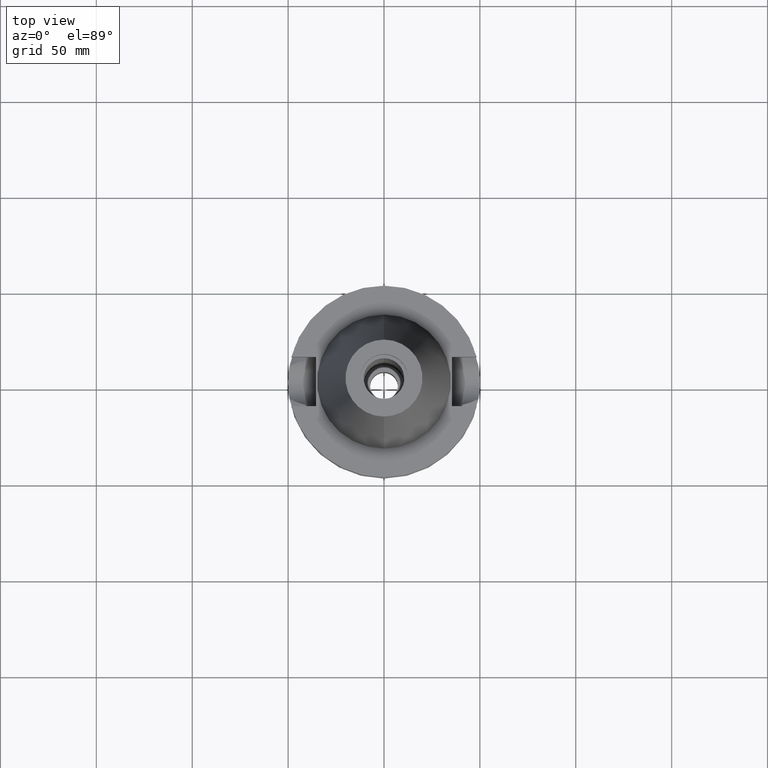
[diagram: clean part render]
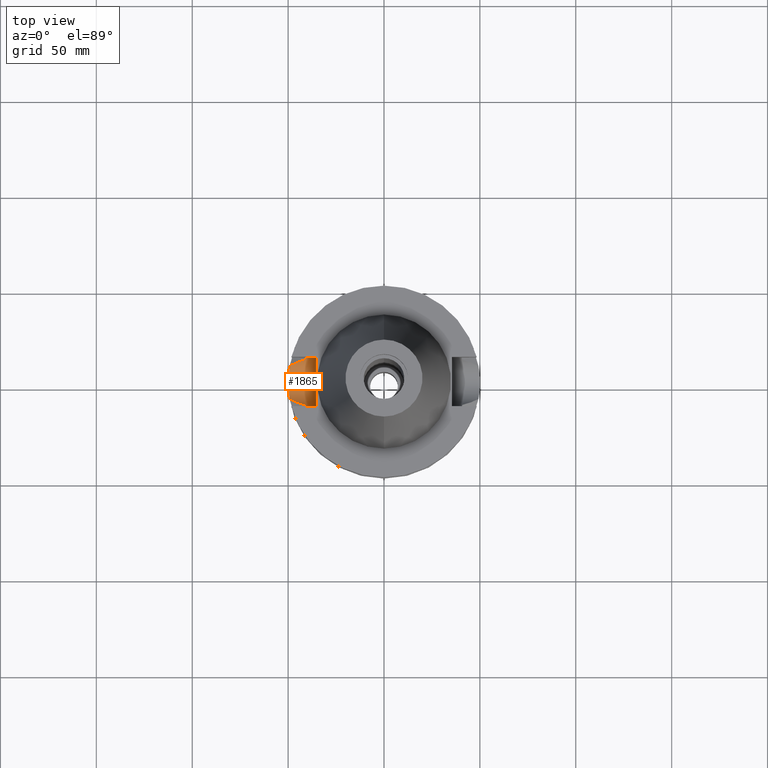
[diagram: same view with one face highlighted and labeled with its STEP entity id]
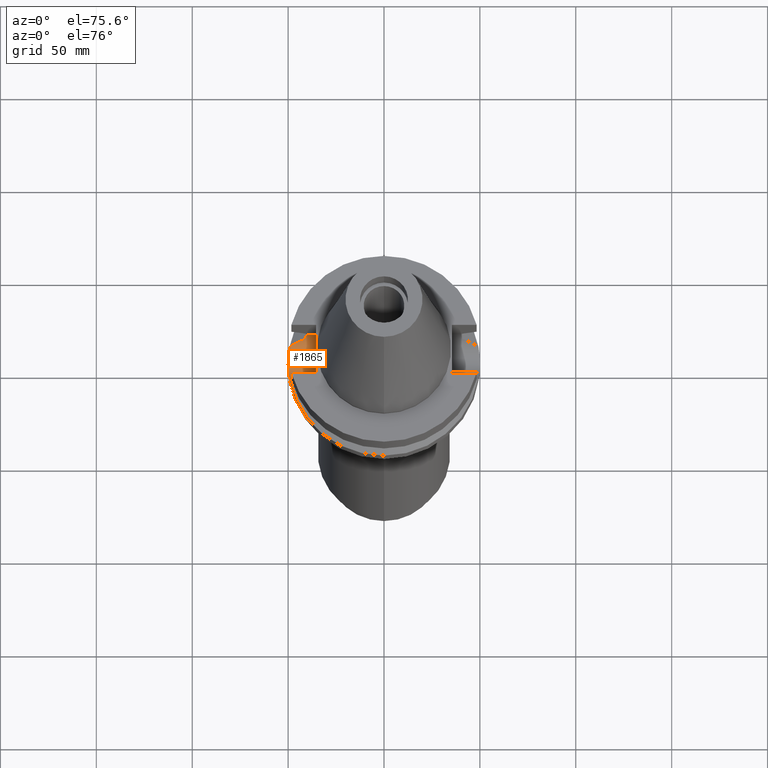
[diagram: same view with one face highlighted and labeled with its STEP entity id]
A machine part, top view. The second image highlights one B-rep face of the part: STEP entity #1865.
A second angle (auxiliary view) of the same face is appended — the face is thin or edge-on in the first view.
In plain terms, the highlighted cylindrical surface (edge-blend (fillet) strip) has radius 12.85 mm, axis along (-1, 0, 0).
Its self-contained STEP definition (entity closure, byte-faithful):
#561=CARTESIAN_POINT('',(-4.926250064874E1,-8.556052234130E0,
-3.073730776427E1));
#562=CARTESIAN_POINT('',(-4.850516715123E1,-8.990660140461E0,
-3.034944831098E1));
#563=CARTESIAN_POINT('',(-4.686825604704E1,-9.811258881920E0,
-2.951024882166E1));
#564=CARTESIAN_POINT('',(-4.409105561533E1,-1.087032054239E1,
-2.808218430025E1));
#565=CARTESIAN_POINT('',(-4.197104311257E1,-1.146516460610E1,
-2.698755488822E1));
#566=CARTESIAN_POINT('',(-4.085052569294E1,-1.172538061688E1,
-2.640718074535E1));
#613=DIRECTION('',(1.E0,3.440913946377E-14,0.E0));
#614=VECTOR('',#613,5.110831884819E0);
#615=CARTESIAN_POINT('',(-4.051083188482E1,1.285E1,-2.115E1));
#616=LINE('',#615,#614);
#620=DIRECTION('',(-1.E0,3.440913946377E-14,0.E0));
#621=VECTOR('',#620,5.110831884819E0);
#622=CARTESIAN_POINT('',(-3.54E1,-1.285E1,-2.115E1));
#623=LINE('',#622,#621);
#627=CARTESIAN_POINT('',(-4.926250064874E1,8.556052234130E0,-3.073730776427E1));
#628=CARTESIAN_POINT('',(-4.940321166032E1,7.745891647244E0,-3.146032370053E1));
#629=CARTESIAN_POINT('',(-4.966354633816E1,6.009494853035E0,-3.264838015528E1));
#630=CARTESIAN_POINT('',(-4.993505016636E1,3.097927022764E0,-3.375085846751E1));
#631=CARTESIAN_POINT('',(-5.003341773210E1,-3.317705588817E-2,
-3.412825295594E1));
#632=CARTESIAN_POINT('',(-4.993122005528E1,-3.153128237907E0,
-3.373590945716E1));
#633=CARTESIAN_POINT('',(-4.965909801349E1,-6.041818989295E0,
-3.262908500026E1));
#634=CARTESIAN_POINT('',(-4.940135028424E1,-7.756608744092E0,
-3.145075938460E1));
#635=CARTESIAN_POINT('',(-4.926250064874E1,-8.556052234130E0,
-3.073730776427E1));
#647=CARTESIAN_POINT('',(-4.085052569294E1,1.172538061688E1,-2.640718074535E1));
#648=CARTESIAN_POINT('',(-4.199125307937E1,1.146047127707E1,-2.699802267922E1));
#649=CARTESIAN_POINT('',(-4.413767336199E1,1.085594569156E1,-2.810621682469E1));
#650=CARTESIAN_POINT('',(-4.692023390266E1,9.787981904947E0,-2.953692372937E1));
#651=CARTESIAN_POINT('',(-4.852650617830E1,8.978414399440E0,-3.036037684300E1));
#652=CARTESIAN_POINT('',(-4.926250064874E1,8.556052234130E0,-3.073730776427E1));
#699=CARTESIAN_POINT('',(-4.051083188482E1,1.285E1,-2.115E1));
#700=CARTESIAN_POINT('',(-4.051083188482E1,1.285E1,-2.175070197328E1));
#701=CARTESIAN_POINT('',(-4.053738122520E1,1.276676406189E1,-2.294131845129E1));
#702=CARTESIAN_POINT('',(-4.065471965947E1,1.239074132198E1,-2.471132966440E1));
#703=CARTESIAN_POINT('',(-4.077854121564E1,1.197617023603E1,-2.584783080444E1));
#704=CARTESIAN_POINT('',(-4.085052569294E1,1.172538061688E1,-2.640718074535E1));
#863=CARTESIAN_POINT('',(-3.54E1,1.497743035357E-14,-2.115E1));
#864=DIRECTION('',(1.E0,0.E0,0.E0));
#865=DIRECTION('',(0.E0,-1.E0,0.E0));
#866=AXIS2_PLACEMENT_3D('',#863,#864,#865);
#871=CARTESIAN_POINT('',(-3.54E1,1.497743035357E-14,-2.115E1));
#872=DIRECTION('',(1.E0,0.E0,0.E0));
#873=DIRECTION('',(0.E0,0.E0,-1.E0));
#874=AXIS2_PLACEMENT_3D('',#871,#872,#873);
#903=CARTESIAN_POINT('',(-4.085052569294E1,-1.172538061688E1,
-2.640718074535E1));
#904=CARTESIAN_POINT('',(-4.077853558028E1,-1.197618986931E1,
-2.584778701526E1));
#905=CARTESIAN_POINT('',(-4.065470945281E1,-1.239077466892E1,
-2.471122190611E1));
#906=CARTESIAN_POINT('',(-4.053737686515E1,-1.276677772129E1,
-2.294120503283E1));
#907=CARTESIAN_POINT('',(-4.051083188482E1,-1.285E1,-2.175065321731E1));
#908=CARTESIAN_POINT('',(-4.051083188482E1,-1.285E1,-2.115E1));
#1227=VERTEX_POINT('',#561);
#1228=VERTEX_POINT('',#566);
#1231=VERTEX_POINT('',#647);
#1232=VERTEX_POINT('',#652);
#1235=VERTEX_POINT('',#699);
#1236=CARTESIAN_POINT('',(-3.54E1,1.285E1,-2.115E1));
#1237=VERTEX_POINT('',#1236);
#1238=CARTESIAN_POINT('',(-3.54E1,1.576426592202E-14,-3.4E1));
#1239=VERTEX_POINT('',#1238);
#1240=CARTESIAN_POINT('',(-3.54E1,-1.285E1,-2.115E1));
#1241=VERTEX_POINT('',#1240);
#1242=CARTESIAN_POINT('',(-4.051083188482E1,-1.285E1,-2.115E1));
#1243=VERTEX_POINT('',#1242);
#1841=CARTESIAN_POINT('',(-3.54E1,1.497743035357E-14,-2.115E1));
#1842=DIRECTION('',(-1.E0,0.E0,0.E0));
#1843=DIRECTION('',(0.E0,0.E0,-1.E0));
#1844=AXIS2_PLACEMENT_3D('',#1841,#1842,#1843);
#1845=CYLINDRICAL_SURFACE('',#1844,1.285E1);
#1846=ORIENTED_EDGE('',*,*,#1828,.F.);
#1848=ORIENTED_EDGE('',*,*,#1847,.F.);
#1850=ORIENTED_EDGE('',*,*,#1849,.F.);
#1852=ORIENTED_EDGE('',*,*,#1851,.F.);
#1854=ORIENTED_EDGE('',*,*,#1853,.T.);
#1856=ORIENTED_EDGE('',*,*,#1855,.F.);
#1858=ORIENTED_EDGE('',*,*,#1857,.F.);
#1860=ORIENTED_EDGE('',*,*,#1859,.T.);
#1862=ORIENTED_EDGE('',*,*,#1861,.F.);
#1863=EDGE_LOOP('',(#1846,#1848,#1850,#1852,#1854,#1856,#1858,#1860,#1862));
#1864=FACE_OUTER_BOUND('',#1863,.F.);
#567=B_SPLINE_CURVE_WITH_KNOTS('',3,(#561,#562,#563,#564,#565,#566),
.UNSPECIFIED.,.F.,.F.,(4,1,1,4),(0.E0,3.333333333333E-1,6.666666666667E-1,1.E0),
.UNSPECIFIED.);
#636=B_SPLINE_CURVE_WITH_KNOTS('',3,(#627,#628,#629,#630,#631,#632,#633,#634,
#635),.UNSPECIFIED.,.F.,.F.,(4,1,1,1,1,1,4),(0.E0,1.666666666667E-1,
3.333333333333E-1,5.E-1,6.666666666667E-1,8.333333333333E-1,1.E0),
.UNSPECIFIED.);
#653=B_SPLINE_CURVE_WITH_KNOTS('',3,(#647,#648,#649,#650,#651,#652),
.UNSPECIFIED.,.F.,.F.,(4,1,1,4),(0.E0,3.333333333333E-1,6.666666666667E-1,1.E0),
.UNSPECIFIED.);
#705=B_SPLINE_CURVE_WITH_KNOTS('',3,(#699,#700,#701,#702,#703,#704),
.UNSPECIFIED.,.F.,.F.,(4,1,1,4),(0.E0,3.333333333333E-1,6.666666666667E-1,1.E0),
.UNSPECIFIED.);
#867=CIRCLE('',#866,1.285E1);
#875=CIRCLE('',#874,1.285E1);
#909=B_SPLINE_CURVE_WITH_KNOTS('',3,(#903,#904,#905,#906,#907,#908),
.UNSPECIFIED.,.F.,.F.,(4,1,1,4),(0.E0,3.333333333333E-1,6.666666666667E-1,1.E0),
.UNSPECIFIED.);
#1828=EDGE_CURVE('',#1227,#1228,#567,.T.);
#1847=EDGE_CURVE('',#1232,#1227,#636,.T.);
#1849=EDGE_CURVE('',#1231,#1232,#653,.T.);
#1851=EDGE_CURVE('',#1235,#1231,#705,.T.);
#1853=EDGE_CURVE('',#1235,#1237,#616,.T.);
#1855=EDGE_CURVE('',#1239,#1237,#875,.T.);
#1857=EDGE_CURVE('',#1241,#1239,#867,.T.);
#1859=EDGE_CURVE('',#1241,#1243,#623,.T.);
#1861=EDGE_CURVE('',#1228,#1243,#909,.T.);
#1865=ADVANCED_FACE('',(#1864),#1845,.F.);